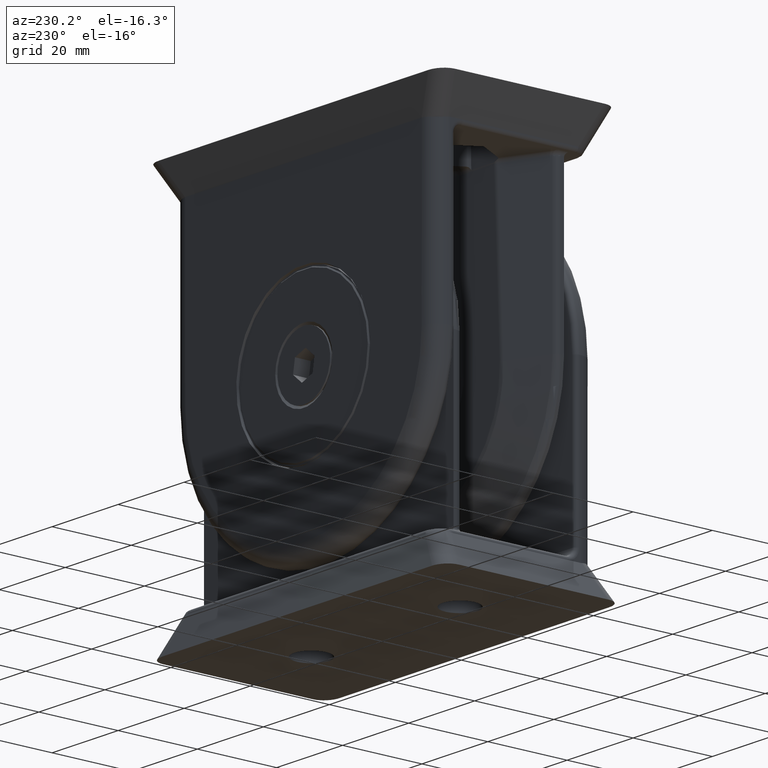
[diagram: clean part render]
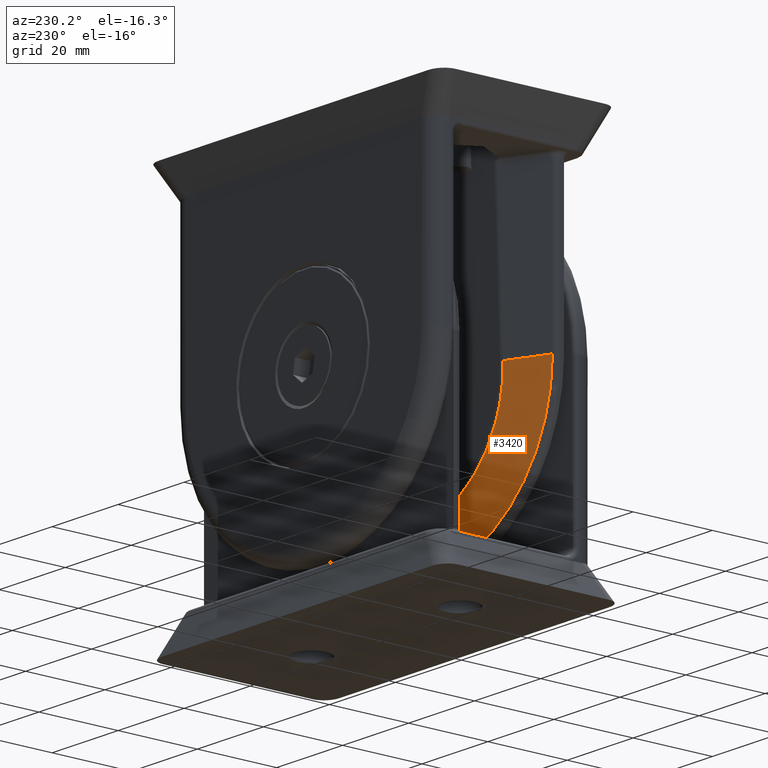
[diagram: same view with one face highlighted and labeled with its STEP entity id]
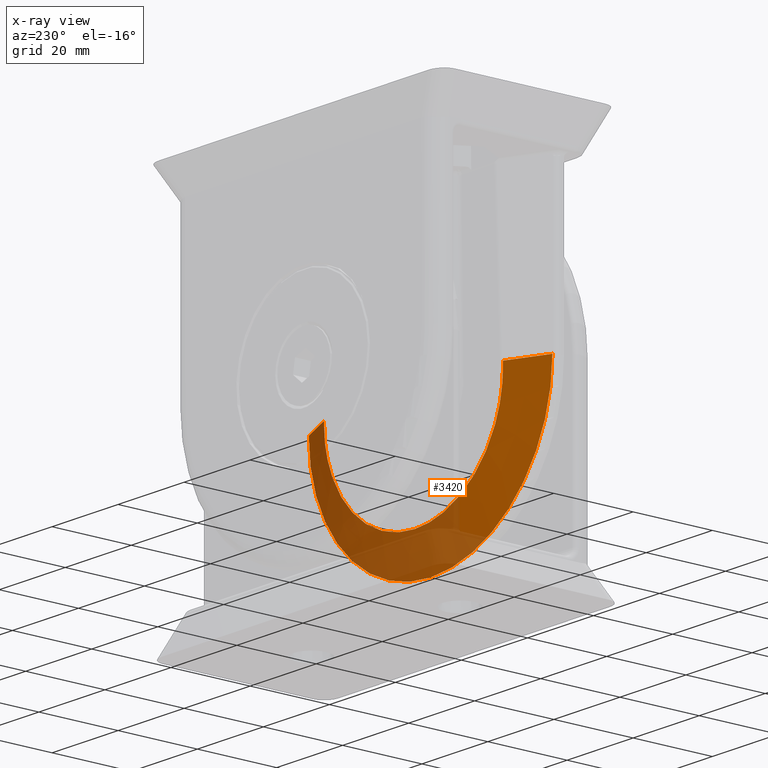
[diagram: x-ray of the same camera — body ghosted, the highlighted face saturated]
A machine part, auxiliary view. The second image highlights one B-rep face of the part: STEP entity #3420.
The next image is the same camera in x-ray: the body ghosted, the highlighted face saturated — about 50% of this face is hidden behind the body in this view.
In plain terms, the highlighted conical surface has half-angle 66.125 deg.
Its self-contained STEP definition (entity closure, byte-faithful):
#293=LINE('',#7201,#520);
#294=LINE('',#7204,#521);
#520=VECTOR('',#4271,1000.);
#521=VECTOR('',#4274,1000.);
#745=CONICAL_SURFACE('',#3763,36.9071206680867,1.1540940660555);
#770=B_SPLINE_CURVE_WITH_KNOTS('',3,(#6837,#6838,#6839,#6840,#6841,#6842,
#6843,#6844,#6845,#6846,#6847,#6848,#6849,#6850,#6851,#6852,#6853,#6854,
#6855,#6856,#6857,#6858,#6859,#6860,#6861,#6862,#6863,#6864,#6865,#6866,
#6867,#6868,#6869,#6870,#6871,#6872,#6873,#6874,#6875,#6876,#6877,#6878,
#6879,#6880,#6881,#6882,#6883,#6884,#6885,#6886,#6887,#6888,#6889,#6890,
#6891,#6892,#6893,#6894,#6895,#6896,#6897,#6898,#6899,#6900,#6901,#6902,
#6903,#6904,#6905,#6906,#6907,#6908,#6909,#6910,#6911,#6912,#6913,#6914,
#6915,#6916,#6917,#6918,#6919,#6920,#6921,#6922,#6923,#6924,#6925,#6926,
#6927,#6928,#6929,#6930,#6931,#6932,#6933,#6934,#6935,#6936,#6937,#6938,
#6939,#6940,#6941,#6942,#6943,#6944,#6945,#6946,#6947,#6948,#6949,#6950,
#6951,#6952,#6953,#6954,#6955,#6956,#6957,#6958,#6959,#6960,#6961,#6962,
#6963,#6964,#6965,#6966,#6967,#6968,#6969,#6970,#6971,#6972,#6973,#6974,
#6975,#6976,#6977,#6978,#6979,#6980,#6981,#6982,#6983,#6984,#6985,#6986,
#6987,#6988,#6989,#6990,#6991,#6992,#6993,#6994,#6995,#6996,#6997,#6998,
#6999,#7000,#7001,#7002,#7003,#7004,#7005,#7006,#7007,#7008,#7009,#7010,
#7011,#7012,#7013,#7014,#7015,#7016,#7017,#7018,#7019,#7020,#7021,#7022,
#7023,#7024,#7025,#7026),.UNSPECIFIED.,.F.,.F.,(4,3,3,3,3,3,3,3,3,3,3,3,
3,3,3,3,3,3,3,3,3,3,3,3,3,3,3,3,3,3,3,3,3,3,3,3,3,3,3,3,3,3,3,3,3,3,3,3,
3,3,3,3,3,3,3,3,3,3,3,3,3,3,3,4),(0.,0.00496901408670476,0.00999348648159297,
0.0150870706226148,0.0156174301950098,0.0207750741985924,0.026004967294306,
0.0312348603900196,0.0364837641100364,0.0417456848402849,0.0468522905850294,
0.0522104310848483,0.0575685715846672,0.0624697207800392,0.0625307263667378,
0.0627137431268333,0.0629577654736271,0.0634458101672145,0.0644218995543892,
0.0663740783287386,0.0702784358774375,0.0780871509748354,0.0884973774048835,
0.0937045811696312,0.104400970945009,0.115345129519623,0.124646324275903,
0.124939441559223,0.125183463906017,0.137807438707664,0.140556871754016,
0.153738007328975,0.156174301948808,0.169225074839509,0.182431340771903,
0.183785299570396,0.187409162338392,0.200928688466236,0.214677067463979,
0.228564027215827,0.24267170086544,0.249636210686608,0.24987888311756,0.250366927811148,
0.266335901384866,0.281113743507141,0.29730732480536,0.310700852525828,
0.312348603896722,0.32916138072297,0.346038459850761,0.36302135108131,0.374667701468656,
0.374818324675884,0.375745542263617,0.375794414063059,0.396519471010802,
0.406053185065466,0.427346229646554,0.436778259972699,0.437288045455047,
0.459915033516844,0.482334324087893,0.49975776623421),.UNSPECIFIED.);
#771=B_SPLINE_CURVE_WITH_KNOTS('',3,(#7028,#7029,#7030,#7031,#7032,#7033,
#7034,#7035,#7036,#7037,#7038,#7039,#7040,#7041,#7042,#7043,#7044,#7045,
#7046,#7047,#7048,#7049,#7050,#7051,#7052,#7053,#7054,#7055,#7056,#7057,
#7058,#7059,#7060,#7061,#7062,#7063,#7064,#7065,#7066,#7067,#7068,#7069,
#7070,#7071,#7072,#7073,#7074,#7075,#7076,#7077,#7078,#7079,#7080,#7081,
#7082,#7083,#7084,#7085,#7086,#7087,#7088,#7089,#7090,#7091,#7092,#7093,
#7094,#7095,#7096,#7097,#7098,#7099,#7100,#7101,#7102,#7103,#7104,#7105,
#7106,#7107,#7108,#7109,#7110,#7111,#7112,#7113,#7114,#7115,#7116,#7117,
#7118,#7119,#7120,#7121,#7122,#7123,#7124,#7125,#7126,#7127,#7128,#7129,
#7130,#7131,#7132,#7133,#7134,#7135,#7136,#7137,#7138,#7139,#7140,#7141,
#7142,#7143,#7144,#7145,#7146,#7147,#7148,#7149,#7150,#7151,#7152,#7153,
#7154,#7155,#7156,#7157,#7158,#7159,#7160,#7161,#7162,#7163,#7164,#7165,
#7166,#7167,#7168,#7169,#7170,#7171,#7172,#7173,#7174,#7175,#7176,#7177,
#7178,#7179,#7180,#7181,#7182,#7183,#7184,#7185,#7186,#7187,#7188,#7189,
#7190,#7191,#7192,#7193,#7194,#7195,#7196,#7197,#7198,#7199),
 .UNSPECIFIED.,.F.,.F.,(4,3,3,3,3,3,3,3,3,3,3,3,3,3,3,3,3,3,3,3,3,3,3,3,
3,3,3,3,3,3,3,3,3,3,3,3,3,3,3,3,3,3,3,3,3,3,3,3,3,3,3,3,3,3,3,3,3,4),(0.49975776623421,
0.522501690391458,0.545265502026357,0.562288045454961,0.562751039808893,
0.585116945097173,0.607697129267104,0.624818324675712,0.624875138626123,
0.626262761929181,0.626772395901361,0.644136714095704,0.656083464286088,
0.673203597096208,0.687348603896463,0.688898806063737,0.705485707522742,
0.722017965688576,0.738470897152814,0.749878883117214,0.749982601406335,
0.750784015006457,0.750855918730038,0.765511452922399,0.779398061005293,
0.781144022727585,0.795013442474264,0.808692183368573,0.812409162337957,
0.815903920837752,0.829276912624057,0.842446984661242,0.855507936882645,
0.868414468005646,0.8749394415587,0.875041224599058,0.875183700461906,0.875427959365112,
0.875916477171523,0.876893512784346,0.878847584009991,0.882755726461282,
0.890572011363863,0.899569107448061,0.906204581169025,0.915060768021706,
0.923833133336935,0.932460434289638,0.93746972077935,0.945879054547924,
0.95112218702445,0.959928523707063,0.968179313211954,0.968734860389675,
0.976770314219481,0.984694483860367,0.992442504353739,1.),.UNSPECIFIED.);
#827=FACE_OUTER_BOUND('',#1046,.T.);
#1046=EDGE_LOOP('',(#2386,#2387,#2388,#2389,#2390));
#1307=CIRCLE('',#3764,36.9071206680866);
#1516=VERTEX_POINT('',#6835);
#1517=VERTEX_POINT('',#6836);
#1518=VERTEX_POINT('',#7027);
#1519=VERTEX_POINT('',#7200);
#1520=VERTEX_POINT('',#7202);
#1851=EDGE_CURVE('',#1516,#1517,#770,.T.);
#1852=EDGE_CURVE('',#1517,#1518,#771,.T.);
#1853=EDGE_CURVE('',#1518,#1519,#293,.T.);
#1854=EDGE_CURVE('',#1519,#1520,#1307,.T.);
#1855=EDGE_CURVE('',#1520,#1516,#294,.T.);
#2386=ORIENTED_EDGE('',*,*,#1851,.T.);
#2387=ORIENTED_EDGE('',*,*,#1852,.T.);
#2388=ORIENTED_EDGE('',*,*,#1853,.T.);
#2389=ORIENTED_EDGE('',*,*,#1854,.T.);
#2390=ORIENTED_EDGE('',*,*,#1855,.T.);
#3420=ADVANCED_FACE('',(#827),#745,.T.);
#3763=AXIS2_PLACEMENT_3D('',#6834,#4269,#4270);
#3764=AXIS2_PLACEMENT_3D('',#7203,#4272,#4273);
#4269=DIRECTION('center_axis',(0.,-1.,0.));
#4270=DIRECTION('ref_axis',(0.,0.,-1.));
#4271=DIRECTION('',(0.914428660574951,-0.404747112057765,0.));
#4272=DIRECTION('center_axis',(0.,1.,0.));
#4273=DIRECTION('ref_axis',(0.,0.,-1.));
#4274=DIRECTION('',(0.914428660574951,0.404747112057765,0.));
#6834=CARTESIAN_POINT('Origin',(5.02088605067175E-15,-12.2047911153826,
-41.));
#6835=CARTESIAN_POINT('',(-27.1305756899519,-7.87746792833935,-41.));
#6836=CARTESIAN_POINT('',(-2.08992956274301E-8,-8.21174318684244,-68.8857901628663));
#6837=CARTESIAN_POINT('Ctrl Pts',(-27.1305756899519,-7.87746792833935,-41.));
#6838=CARTESIAN_POINT('Ctrl Pts',(-27.1372672709789,-7.88042977567918,-41.2472879584135));
#6839=CARTESIAN_POINT('Ctrl Pts',(-27.1403612086924,-7.88329906252694,-41.486842247325));
#6840=CARTESIAN_POINT('Ctrl Pts',(-27.1404860785424,-7.88607440846574,-41.7185548934099));
#6841=CARTESIAN_POINT('Ctrl Pts',(-27.1406123420432,-7.88888072956133,-41.9528536443262));
#6842=CARTESIAN_POINT('Ctrl Pts',(-27.1377029658793,-7.89159100464065,-42.179135029916));
#6843=CARTESIAN_POINT('Ctrl Pts',(-27.1323648187936,-7.89420418908545,-42.3973192376093));
#6844=CARTESIAN_POINT('Ctrl Pts',(-27.1269532453584,-7.89685331794903,-42.6185045746525));
#6845=CARTESIAN_POINT('Ctrl Pts',(-27.1190457230542,-7.89940267029386,-42.8313687360082));
#6846=CARTESIAN_POINT('Ctrl Pts',(-27.1092292546488,-7.90185149590535,-43.0358566801703));
#6847=CARTESIAN_POINT('Ctrl Pts',(-27.1082071339099,-7.90210647512395,-43.0571485908609));
#6848=CARTESIAN_POINT('Ctrl Pts',(-27.1071642764378,-7.90236036474134,-43.0783497123472));
#6849=CARTESIAN_POINT('Ctrl Pts',(-27.1061013165139,-7.9026131640941,-43.0994599977441));
#6850=CARTESIAN_POINT('Ctrl Pts',(-27.0957642373644,-7.9050715887813,-43.3047534298952));
#6851=CARTESIAN_POINT('Ctrl Pts',(-27.0835277275076,-7.90742588814931,-43.5014548128113));
#6852=CARTESIAN_POINT('Ctrl Pts',(-27.0699499191804,-7.90967635984589,-43.689537863592));
#6853=CARTESIAN_POINT('Ctrl Pts',(-27.0561819107689,-7.91195835650558,-43.8802556114659));
#6854=CARTESIAN_POINT('Ctrl Pts',(-27.0410348717579,-7.91413359981367,-44.0621121824995));
#6855=CARTESIAN_POINT('Ctrl Pts',(-27.0250401930092,-7.91620263344053,-44.2350998530527));
#6856=CARTESIAN_POINT('Ctrl Pts',(-27.0090455142604,-7.9182716670674,-44.4080875236059));
#6857=CARTESIAN_POINT('Ctrl Pts',(-26.9922031906735,-7.920234494835,-44.5722066166081));
#6858=CARTESIAN_POINT('Ctrl Pts',(-26.9749938266691,-7.92209183556343,-44.7274641764936));
#6859=CARTESIAN_POINT('Ctrl Pts',(-26.9577219067485,-7.92395592771224,-44.8832860965078));
#6860=CARTESIAN_POINT('Ctrl Pts',(-26.9400805807614,-7.92571387998015,-45.0301822177982));
#6861=CARTESIAN_POINT('Ctrl Pts',(-26.9225021919453,-7.92736589883561,-45.1681739145141));
#6862=CARTESIAN_POINT('Ctrl Pts',(-26.9048802096325,-7.92902201461255,-45.3065078235136));
#6863=CARTESIAN_POINT('Ctrl Pts',(-26.8873214923619,-7.93057167406844,-45.4358933517386));
#6864=CARTESIAN_POINT('Ctrl Pts',(-26.8702095243766,-7.93201515892444,-45.5563580426902));
#6865=CARTESIAN_POINT('Ctrl Pts',(-26.8536026466798,-7.93341603674757,-45.6732670031989));
#6866=CARTESIAN_POINT('Ctrl Pts',(-26.8374162932636,-7.9347169180006,-45.7817742048331));
#6867=CARTESIAN_POINT('Ctrl Pts',(-26.8219540872653,-7.93591808638446,-45.881906886196));
#6868=CARTESIAN_POINT('Ctrl Pts',(-26.8057302633954,-7.93717842040795,-45.9869717770814));
#6869=CARTESIAN_POINT('Ctrl Pts',(-26.7903038827515,-7.93832886822652,-46.0828169666579));
#6870=CARTESIAN_POINT('Ctrl Pts',(-26.7759691547959,-7.93936932362533,-46.169477408564));
#6871=CARTESIAN_POINT('Ctrl Pts',(-26.7616344268403,-7.94040977902413,-46.2561378504702));
#6872=CARTESIAN_POINT('Ctrl Pts',(-26.7483913469984,-7.94134024421832,-46.333613726216));
#6873=CARTESIAN_POINT('Ctrl Pts',(-26.7364780510123,-7.94216056646738,-46.4019359205641));
#6874=CARTESIAN_POINT('Ctrl Pts',(-26.7255808300382,-7.94291092412058,-46.4644309723207));
#6875=CARTESIAN_POINT('Ctrl Pts',(-26.715795643787,-7.94356912440522,-46.5192670716622));
#6876=CARTESIAN_POINT('Ctrl Pts',(-26.7072638016368,-7.94413499631989,-46.5664632390231));
#6877=CARTESIAN_POINT('Ctrl Pts',(-26.707157604087,-7.94414203984107,-46.567050699181));
#6878=CARTESIAN_POINT('Ctrl Pts',(-26.706569557678,-7.94418102784581,-46.5703024526842));
#6879=CARTESIAN_POINT('Ctrl Pts',(-26.7062221852284,-7.94420403922969,-46.572221672091));
#6880=CARTESIAN_POINT('Ctrl Pts',(-26.7051800678796,-7.94427307338132,-46.5779793303112));
#6881=CARTESIAN_POINT('Ctrl Pts',(-26.7041364503443,-7.94434208110917,-46.5837346518972));
#6882=CARTESIAN_POINT('Ctrl Pts',(-26.703091336772,-7.9444110623678,-46.5894876362441));
#6883=CARTESIAN_POINT('Ctrl Pts',(-26.701697852009,-7.94450303737931,-46.59715828204));
#6884=CARTESIAN_POINT('Ctrl Pts',(-26.7003017076249,-7.94459496533431,-46.6048247727443));
#6885=CARTESIAN_POINT('Ctrl Pts',(-26.6989029134463,-7.94468684612616,-46.6124871069393));
#6886=CARTESIAN_POINT('Ctrl Pts',(-26.696105325089,-7.94487060770985,-46.6278117753293));
#6887=CARTESIAN_POINT('Ctrl Pts',(-26.6932971375555,-7.94505418063756,-46.6431198176824));
#6888=CARTESIAN_POINT('Ctrl Pts',(-26.6904784293483,-7.94523756407273,-46.6584112228388));
#6889=CARTESIAN_POINT('Ctrl Pts',(-26.6848410129338,-7.94560433094309,-46.6889940331515));
#6890=CARTESIAN_POINT('Ctrl Pts',(-26.6791615138483,-7.94597033978949,-46.7195102946801));
#6891=CARTESIAN_POINT('Ctrl Pts',(-26.6734405582666,-7.94633558416646,-46.7499599211253));
#6892=CARTESIAN_POINT('Ctrl Pts',(-26.6619986471031,-7.9470660729204,-46.8108591740156));
#6893=CARTESIAN_POINT('Ctrl Pts',(-26.6503909103329,-7.94779350293853,-46.8714918866168));
#6894=CARTESIAN_POINT('Ctrl Pts',(-26.6386223274541,-7.94851782637461,-46.9318574149129));
#6895=CARTESIAN_POINT('Ctrl Pts',(-26.6150851616964,-7.94996647324677,-47.0525884715051));
#6896=CARTESIAN_POINT('Ctrl Pts',(-26.5909046160201,-7.95140268067817,-47.1722507969157));
#6897=CARTESIAN_POINT('Ctrl Pts',(-26.5661191096939,-7.95282566194946,-47.2908394035182));
#6898=CARTESIAN_POINT('Ctrl Pts',(-26.5165480970415,-7.95567162449206,-47.5280166167234));
#6899=CARTESIAN_POINT('Ctrl Pts',(-26.4645519910176,-7.95846204339978,-47.7608977561409));
#6900=CARTESIAN_POINT('Ctrl Pts',(-26.4104505380895,-7.96120077182293,-47.989460172224));
#6901=CARTESIAN_POINT('Ctrl Pts',(-26.3383249235485,-7.96485192091209,-48.2941692665047));
#6902=CARTESIAN_POINT('Ctrl Pts',(-26.2624588343281,-7.96841118242944,-48.5912014867922));
#6903=CARTESIAN_POINT('Ctrl Pts',(-26.1835540486255,-7.97187828914183,-48.8805358020313));
#6904=CARTESIAN_POINT('Ctrl Pts',(-26.1440858103573,-7.97361253875176,-49.0252610628801));
#6905=CARTESIAN_POINT('Ctrl Pts',(-26.1038566936363,-7.97532373822041,-49.1680608896557));
#6906=CARTESIAN_POINT('Ctrl Pts',(-26.0629510016781,-7.97701189426168,-49.3089359920547));
#6907=CARTESIAN_POINT('Ctrl Pts',(-25.9789244790024,-7.98047962393671,-49.5983149126775));
#6908=CARTESIAN_POINT('Ctrl Pts',(-25.8920455308425,-7.9838500045298,-49.8795701314555));
#6909=CARTESIAN_POINT('Ctrl Pts',(-25.8030141563838,-7.98712352038637,-50.1527356236569));
#6910=CARTESIAN_POINT('Ctrl Pts',(-25.7119204789231,-7.99047286323785,-50.4322286607045));
#6911=CARTESIAN_POINT('Ctrl Pts',(-25.6185735904788,-7.99372080456374,-50.7032530781792));
#6912=CARTESIAN_POINT('Ctrl Pts',(-25.5236796969023,-7.99686827150501,-50.9658792902786));
#6913=CARTESIAN_POINT('Ctrl Pts',(-25.4430315064252,-7.9995432330208,-51.1890794139049));
#6914=CARTESIAN_POINT('Ctrl Pts',(-25.3612651650456,-8.00214563099665,-51.4062142730951));
#6915=CARTESIAN_POINT('Ctrl Pts',(-25.2787897933373,-8.00467623437207,-51.6173437339757));
#6916=CARTESIAN_POINT('Ctrl Pts',(-25.2761906695119,-8.00475598365224,-51.6239972549075));
#6917=CARTESIAN_POINT('Ctrl Pts',(-25.2735908402595,-8.00483566162813,-51.6306448114659));
#6918=CARTESIAN_POINT('Ctrl Pts',(-25.270990318436,-8.00491526832841,-51.6372864059115));
#6919=CARTESIAN_POINT('Ctrl Pts',(-25.2688253644248,-8.00498154150618,-51.6428155833272));
#6920=CARTESIAN_POINT('Ctrl Pts',(-25.2652817398507,-8.00508989647233,-51.6518564460548));
#6921=CARTESIAN_POINT('Ctrl Pts',(-25.2624235167052,-8.00517716072056,-51.6591375472317));
#6922=CARTESIAN_POINT('Ctrl Pts',(-25.1145594483535,-8.00969159017846,-52.0358097618605));
#6923=CARTESIAN_POINT('Ctrl Pts',(-24.9596956307415,-8.01412233629411,-52.4054869010837));
#6924=CARTESIAN_POINT('Ctrl Pts',(-24.798503459407,-8.01846740071661,-52.7680037905788));
#6925=CARTESIAN_POINT('Ctrl Pts',(-24.7633966812612,-8.01941373211377,-52.8469579972767));
#6926=CARTESIAN_POINT('Ctrl Pts',(-24.7279896075892,-8.02035600128674,-52.9255727312511));
#6927=CARTESIAN_POINT('Ctrl Pts',(-24.6922889950295,-8.02129419069338,-53.0038465442938));
#6928=CARTESIAN_POINT('Ctrl Pts',(-24.5211356676618,-8.025791991351,-53.3791012692833));
#6929=CARTESIAN_POINT('Ctrl Pts',(-24.343238305184,-8.03019598019439,-53.7465169509323));
#6930=CARTESIAN_POINT('Ctrl Pts',(-24.1593136076155,-8.03450108790493,-54.1059594516514));
#6931=CARTESIAN_POINT('Ctrl Pts',(-24.1253184522973,-8.03529680923662,-54.1723958998361));
#6932=CARTESIAN_POINT('Ctrl Pts',(-24.0911172995412,-8.03608915396639,-54.2385600758311));
#6933=CARTESIAN_POINT('Ctrl Pts',(-24.0567145577771,-8.03687809205102,-54.3044512868088));
#6934=CARTESIAN_POINT('Ctrl Pts',(-23.8724255288864,-8.0411042852559,-54.6574181336598));
#6935=CARTESIAN_POINT('Ctrl Pts',(-23.6823467151936,-8.04522900309247,-55.0025453442179));
#6936=CARTESIAN_POINT('Ctrl Pts',(-23.487161206546,-8.04925944179597,-55.3397615303633));
#6937=CARTESIAN_POINT('Ctrl Pts',(-23.2896501660169,-8.05333790104037,-55.6809954686319));
#6938=CARTESIAN_POINT('Ctrl Pts',(-23.0869100343839,-8.05731982175543,-56.0141288341164));
#6939=CARTESIAN_POINT('Ctrl Pts',(-22.8796162580173,-8.06121309492248,-56.339129856602));
#6940=CARTESIAN_POINT('Ctrl Pts',(-22.8583636773241,-8.0616122487398,-56.3724502513423));
#6941=CARTESIAN_POINT('Ctrl Pts',(-22.8370632046953,-8.06201047113719,-56.4056852011613));
#6942=CARTESIAN_POINT('Ctrl Pts',(-22.8157155490102,-8.06240777087016,-56.4388346959274));
#6943=CARTESIAN_POINT('Ctrl Pts',(-22.758578674013,-8.06347114127083,-56.527559123875));
#6944=CARTESIAN_POINT('Ctrl Pts',(-22.7011039923176,-8.0645278986175,-56.6156710994611));
#6945=CARTESIAN_POINT('Ctrl Pts',(-22.6433061420901,-8.065578221584,-56.7031713508576));
#6946=CARTESIAN_POINT('Ctrl Pts',(-22.4276800005087,-8.06949665605499,-57.0296080872031));
#6947=CARTESIAN_POINT('Ctrl Pts',(-22.2075374514685,-8.07331356153321,-57.3475121234343));
#6948=CARTESIAN_POINT('Ctrl Pts',(-21.9835946958581,-8.07702898940449,-57.656930986678));
#6949=CARTESIAN_POINT('Ctrl Pts',(-21.7558611311743,-8.080807310481,-57.9715875627071));
#6950=CARTESIAN_POINT('Ctrl Pts',(-21.5241976228461,-8.0844806900871,-58.2774693280131));
#6951=CARTESIAN_POINT('Ctrl Pts',(-21.2893151133885,-8.0880495933723,-58.5746600746737));
#6952=CARTESIAN_POINT('Ctrl Pts',(-21.052065037886,-8.09165447044821,-58.8748464412392));
#6953=CARTESIAN_POINT('Ctrl Pts',(-20.8115306971492,-8.09515275571525,-59.1661658065324));
#6954=CARTESIAN_POINT('Ctrl Pts',(-20.5684023412167,-8.09854532794357,-59.4487373926455));
#6955=CARTESIAN_POINT('Ctrl Pts',(-20.3214097984461,-8.10199182038577,-59.7358000608445));
#6956=CARTESIAN_POINT('Ctrl Pts',(-20.0717401210491,-8.10532921384683,-60.0138347606563));
#6957=CARTESIAN_POINT('Ctrl Pts',(-19.8200737777587,-8.10855882199908,-60.282998797422));
#6958=CARTESIAN_POINT('Ctrl Pts',(-19.6958341077015,-8.11015317683415,-60.4158765222771));
#6959=CARTESIAN_POINT('Ctrl Pts',(-19.5711071760096,-8.11172126936905,-60.5465928767724));
#6960=CARTESIAN_POINT('Ctrl Pts',(-19.4459710758266,-8.113263290743,-60.6751695126004));
#6961=CARTESIAN_POINT('Ctrl Pts',(-19.4416108146724,-8.11331702116841,-60.6796496562977));
#6962=CARTESIAN_POINT('Ctrl Pts',(-19.4372500572931,-8.11337071993269,-60.6841272014967));
#6963=CARTESIAN_POINT('Ctrl Pts',(-19.4328888071491,-8.11342438704689,-60.6886021493599));
#6964=CARTESIAN_POINT('Ctrl Pts',(-19.4241177861401,-8.11353231834426,-60.6976018307415));
#6965=CARTESIAN_POINT('Ctrl Pts',(-19.4122674875387,-8.11367791615297,-60.709743688323));
#6966=CARTESIAN_POINT('Ctrl Pts',(-19.4019464992292,-8.11380449006481,-60.7202990725894));
#6967=CARTESIAN_POINT('Ctrl Pts',(-19.0642405642288,-8.11794602767353,-61.065674515914));
#6968=CARTESIAN_POINT('Ctrl Pts',(-18.7191827942839,-8.12195603417055,-61.4000708391618));
#6969=CARTESIAN_POINT('Ctrl Pts',(-18.3676110200593,-8.12583276216883,-61.7233442654171));
#6970=CARTESIAN_POINT('Ctrl Pts',(-18.0422631102418,-8.12942032363889,-62.0225046111635));
#6971=CARTESIAN_POINT('Ctrl Pts',(-17.7113350889774,-8.13289376723734,-62.3121411277433));
#6972=CARTESIAN_POINT('Ctrl Pts',(-17.3754597220252,-8.13625202632649,-62.5921663213781));
#6973=CARTESIAN_POINT('Ctrl Pts',(-17.0074069971546,-8.13993201161329,-62.8990183435579));
#6974=CARTESIAN_POINT('Ctrl Pts',(-16.6333980442562,-8.14346310329158,-63.1943110614452));
#6975=CARTESIAN_POINT('Ctrl Pts',(-16.254249452674,-8.146855996539,-63.4779765608943));
#6976=CARTESIAN_POINT('Ctrl Pts',(-15.9406599459421,-8.14966222012382,-63.7125930833452));
#6977=CARTESIAN_POINT('Ctrl Pts',(-15.6235537992875,-8.15237391102065,-63.9392563426004));
#6978=CARTESIAN_POINT('Ctrl Pts',(-15.3033720749548,-8.15499728066038,-64.1579448215432));
#6979=CARTESIAN_POINT('Ctrl Pts',(-15.2639814165551,-8.15532002318278,-64.1848491777739));
#6980=CARTESIAN_POINT('Ctrl Pts',(-15.2245442395225,-8.15564142866027,-64.2116328143284));
#6981=CARTESIAN_POINT('Ctrl Pts',(-15.1850614188399,-8.15596151011964,-64.2382958154656));
#6982=CARTESIAN_POINT('Ctrl Pts',(-14.7821997588017,-8.15922745074498,-64.5103508691323));
#6983=CARTESIAN_POINT('Ctrl Pts',(-14.374575163187,-8.1623432651117,-64.7698211220262));
#6984=CARTESIAN_POINT('Ctrl Pts',(-13.96307468394,-8.16530925433842,-65.0167830974092));
#6985=CARTESIAN_POINT('Ctrl Pts',(-13.5500003761591,-8.16828658731494,-65.2646896058443));
#6986=CARTESIAN_POINT('Ctrl Pts',(-13.1330204516876,-8.17111294728524,-65.4999920008542));
#6987=CARTESIAN_POINT('Ctrl Pts',(-12.7129850472807,-8.17378892801776,-65.7227913758214));
#6988=CARTESIAN_POINT('Ctrl Pts',(-12.2903161996673,-8.17648168601049,-65.9469876080398));
#6989=CARTESIAN_POINT('Ctrl Pts',(-11.8645534263964,-8.17902217350415,-66.1585235697677));
#6990=CARTESIAN_POINT('Ctrl Pts',(-11.4365156047289,-8.18141128304885,-66.357525892112));
#6991=CARTESIAN_POINT('Ctrl Pts',(-11.1429802824742,-8.18304966172616,-66.4939956334802));
#6992=CARTESIAN_POINT('Ctrl Pts',(-10.8483740644011,-8.18461685638063,-66.6245715478632));
#6993=CARTESIAN_POINT('Ctrl Pts',(-10.552948361269,-8.18611323111887,-66.7493007554777));
#6994=CARTESIAN_POINT('Ctrl Pts',(-10.5491275963578,-8.18613258385641,-66.7509138885761));
#6995=CARTESIAN_POINT('Ctrl Pts',(-10.5453066946947,-8.18615192474677,-66.752526043605));
#6996=CARTESIAN_POINT('Ctrl Pts',(-10.5414856568457,-8.18617125379178,-66.7541372207516));
#6997=CARTESIAN_POINT('Ctrl Pts',(-10.5179638266964,-8.18629024097054,-66.764055425355));
#6998=CARTESIAN_POINT('Ctrl Pts',(-10.4915875956593,-8.18642312741018,-66.7751333315854));
#6999=CARTESIAN_POINT('Ctrl Pts',(-10.4664048045236,-8.18654943319388,-66.7856626883746));
#7000=CARTESIAN_POINT('Ctrl Pts',(-10.4650774695657,-8.18655609052115,-66.7862176698806));
#7001=CARTESIAN_POINT('Ctrl Pts',(-10.4637534548648,-8.18656272970152,-66.786771138704));
#7002=CARTESIAN_POINT('Ctrl Pts',(-10.4624333547212,-8.18656934778131,-66.7873228484722));
#7003=CARTESIAN_POINT('Ctrl Pts',(-9.90261867699573,-8.1893758759206,-67.0212863303859));
#7004=CARTESIAN_POINT('Ctrl Pts',(-9.33613316047358,-8.19195053773253,-67.2359160581036));
#7005=CARTESIAN_POINT('Ctrl Pts',(-8.76440320465793,-8.19429128220323,-67.4310428799778));
#7006=CARTESIAN_POINT('Ctrl Pts',(-8.50140224263522,-8.19536804587703,-67.5208029867333));
#7007=CARTESIAN_POINT('Ctrl Pts',(-8.23729066493843,-8.19639531595782,-67.6064365544399));
#7008=CARTESIAN_POINT('Ctrl Pts',(-7.97220427582786,-8.1973729125036,-67.687928757247));
#7009=CARTESIAN_POINT('Ctrl Pts',(-7.38014788848427,-8.19955632252748,-67.8699372690855));
#7010=CARTESIAN_POINT('Ctrl Pts',(-6.7832213380485,-8.20147989972164,-68.0312605811385));
#7011=CARTESIAN_POINT('Ctrl Pts',(-6.18292899587094,-8.20315884803894,-68.1717834246055));
#7012=CARTESIAN_POINT('Ctrl Pts',(-5.91702171547196,-8.20390255997663,-68.2340298410844));
#7013=CARTESIAN_POINT('Ctrl Pts',(-5.65045341169591,-8.20459827462532,-68.2921951924945));
#7014=CARTESIAN_POINT('Ctrl Pts',(-5.38335193324082,-8.20524732782737,-68.3462709709852));
#7015=CARTESIAN_POINT('Ctrl Pts',(-5.36891554453957,-8.20528240806866,-68.3491936764758));
#7016=CARTESIAN_POINT('Ctrl Pts',(-5.35447760405614,-8.20531735198864,-68.3521044343977));
#7017=CARTESIAN_POINT('Ctrl Pts',(-5.34003813258792,-8.20535215984481,-68.3550032472832));
#7018=CARTESIAN_POINT('Ctrl Pts',(-4.699137675743,-8.20689711742647,-68.4836679637653));
#7019=CARTESIAN_POINT('Ctrl Pts',(-4.05521923441335,-8.20816146028679,-68.5887712231913));
#7020=CARTESIAN_POINT('Ctrl Pts',(-3.41006760121495,-8.20914568455337,-68.6704933942366));
#7021=CARTESIAN_POINT('Ctrl Pts',(-2.77083793938103,-8.21012087443544,-68.7514654217003));
#7022=CARTESIAN_POINT('Ctrl Pts',(-2.13039765498923,-8.21082106511733,-68.8094836417975));
#7023=CARTESIAN_POINT('Ctrl Pts',(-1.49043437941689,-8.21124693255738,-68.8447392845791));
#7024=CARTESIAN_POINT('Ctrl Pts',(-0.993078628022121,-8.21157790095623,
-68.8721386641621));
#7025=CARTESIAN_POINT('Ctrl Pts',(-0.496010034674406,-8.21174318683791,
-68.8857901624831));
#7026=CARTESIAN_POINT('Ctrl Pts',(-2.08992956274301E-8,-8.21174318684244,
-68.8857901628663));
#7027=CARTESIAN_POINT('',(27.1305756899519,-7.87746792833935,-41.));
#7028=CARTESIAN_POINT('Ctrl Pts',(-2.08992956274301E-8,-8.21174318684244,
-68.8857901628663));
#7029=CARTESIAN_POINT('Ctrl Pts',(0.647473295495542,-8.21174272763124,-68.8857891258759));
#7030=CARTESIAN_POINT('Ctrl Pts',(1.29667163208552,-8.21146077409792,-68.8625267914415));
#7031=CARTESIAN_POINT('Ctrl Pts',(1.94590486238934,-8.21089660035598,-68.8158035586142));
#7032=CARTESIAN_POINT('Ctrl Pts',(2.59570578766389,-8.21033193329579,-68.7690394706012));
#7033=CARTESIAN_POINT('Ctrl Pts',(3.24554166626511,-8.2094845520547,-68.6987734462282));
#7034=CARTESIAN_POINT('Ctrl Pts',(3.89366629472695,-8.20835382427217,-68.6048132541585));
#7035=CARTESIAN_POINT('Ctrl Pts',(4.37832720354526,-8.20750827770498,-68.5345507921543));
#7036=CARTESIAN_POINT('Ctrl Pts',(4.86203013749676,-8.2065042886908,-68.4510389657764));
#7037=CARTESIAN_POINT('Ctrl Pts',(5.34402607696349,-8.20534162873453,-68.3542002267055));
#7038=CARTESIAN_POINT('Ctrl Pts',(5.35713583341834,-8.20531000566965,-68.3515663201086));
#7039=CARTESIAN_POINT('Ctrl Pts',(5.37024431932095,-8.20527826606855,-68.3489225579406));
#7040=CARTESIAN_POINT('Ctrl Pts',(5.38335151915873,-8.20524640988924,-68.3462689386657));
#7041=CARTESIAN_POINT('Ctrl Pts',(6.01652207011031,-8.20370753088746,-68.2180803400999));
#7042=CARTESIAN_POINT('Ctrl Pts',(6.64668342058423,-8.20189661167071,-68.0668896792037));
#7043=CARTESIAN_POINT('Ctrl Pts',(7.27212777498207,-8.19981294063147,-67.8928577015143));
#7044=CARTESIAN_POINT('Ctrl Pts',(7.90356426406293,-8.19770930676515,-67.7171583923634));
#7045=CARTESIAN_POINT('Ctrl Pts',(8.53019288869488,-8.19532766991935,-67.5181779649358));
#7046=CARTESIAN_POINT('Ctrl Pts',(9.15021007654113,-8.19266760899976,-67.2961085473411));
#7047=CARTESIAN_POINT('Ctrl Pts',(9.6203318146954,-8.19065064481291,-67.1277266659401));
#7048=CARTESIAN_POINT('Ctrl Pts',(10.0866514936733,-8.18847361334302,-66.946070832974));
#7049=CARTESIAN_POINT('Ctrl Pts',(10.5483657717943,-8.18613644763009,-66.7512350624282));
#7050=CARTESIAN_POINT('Ctrl Pts',(10.5498978968285,-8.18612869211923,-66.7505885310651));
#7051=CARTESIAN_POINT('Ctrl Pts',(10.5514253667102,-8.1861209581822,-66.7499437976602));
#7052=CARTESIAN_POINT('Ctrl Pts',(10.5529483734338,-8.18611324488158,-66.7493007840956));
#7053=CARTESIAN_POINT('Ctrl Pts',(10.5901462729827,-8.18592485531161,-66.7335958278312));
#7054=CARTESIAN_POINT('Ctrl Pts',(10.6246834514498,-8.18574882581323,-66.7189209627653));
#7055=CARTESIAN_POINT('Ctrl Pts',(10.6593461356389,-8.18557118077521,-66.7041115361073));
#7056=CARTESIAN_POINT('Ctrl Pts',(10.6720767386712,-8.18550593688217,-66.6986724613117));
#7057=CARTESIAN_POINT('Ctrl Pts',(10.6848240735506,-8.18544046945314,-66.6932147672294));
#7058=CARTESIAN_POINT('Ctrl Pts',(10.6977254914575,-8.18537406693793,-66.6876791561077));
#7059=CARTESIAN_POINT('Ctrl Pts',(11.1373043616332,-8.18311159138512,-66.4990690591282));
#7060=CARTESIAN_POINT('Ctrl Pts',(11.5749907849798,-8.18069333748253,-66.2974696365277));
#7061=CARTESIAN_POINT('Ctrl Pts',(12.0099378633045,-8.17811750760834,-66.0827295607513));
#7062=CARTESIAN_POINT('Ctrl Pts',(12.309183939806,-8.17634532192875,-65.9349871609373));
#7063=CARTESIAN_POINT('Ctrl Pts',(12.6071322297935,-8.17449855424032,-65.7810251789796));
#7064=CARTESIAN_POINT('Ctrl Pts',(12.9034938995947,-8.17257669692712,-65.6208007883178));
#7065=CARTESIAN_POINT('Ctrl Pts',(13.3281910821732,-8.16982260464932,-65.3911933382719));
#7066=CARTESIAN_POINT('Ctrl Pts',(13.7496242390731,-8.16690567382526,-65.1487064442611));
#7067=CARTESIAN_POINT('Ctrl Pts',(14.1669058864334,-8.16383322184388,-64.8932543024591));
#7068=CARTESIAN_POINT('Ctrl Pts',(14.5116725891802,-8.16129469865297,-64.6821944746526));
#7069=CARTESIAN_POINT('Ctrl Pts',(14.8536044993242,-8.15865001595848,-64.4622844641249));
#7070=CARTESIAN_POINT('Ctrl Pts',(15.1921770999053,-8.15590347328675,-64.2334880122214));
#7071=CARTESIAN_POINT('Ctrl Pts',(15.2292824888678,-8.1556024697975,-64.2084133861987));
#7072=CARTESIAN_POINT('Ctrl Pts',(15.2663474809093,-8.1553002197959,-64.1832319932921));
#7073=CARTESIAN_POINT('Ctrl Pts',(15.3033713581295,-8.15499672117218,-64.1579437799743));
#7074=CARTESIAN_POINT('Ctrl Pts',(15.6995205934003,-8.15174933714006,-63.8873641670495));
#7075=CARTESIAN_POINT('Ctrl Pts',(16.0909605130347,-8.14835901714095,-63.6045561337912));
#7076=CARTESIAN_POINT('Ctrl Pts',(16.4768644781127,-8.14482471315793,-63.3095823795295));
#7077=CARTESIAN_POINT('Ctrl Pts',(16.861497135011,-8.14130205245917,-63.0155803762227));
#7078=CARTESIAN_POINT('Ctrl Pts',(17.2406302660359,-8.13763635467795,-62.7094926410318));
#7079=CARTESIAN_POINT('Ctrl Pts',(17.6134052695945,-8.13382696125843,-62.3914137276575));
#7080=CARTESIAN_POINT('Ctrl Pts',(17.9843915875922,-8.13003584644381,-62.074861051703));
#7081=CARTESIAN_POINT('Ctrl Pts',(18.3490806487429,-8.12610241154836,-61.7464319714064));
#7082=CARTESIAN_POINT('Ctrl Pts',(18.706586271888,-8.12202638589905,-61.4062523356489));
#7083=CARTESIAN_POINT('Ctrl Pts',(18.9544703124857,-8.119200187814,-61.1703816326965));
#7084=CARTESIAN_POINT('Ctrl Pts',(19.1988999914553,-8.11630544516371,-60.9288623703571));
#7085=CARTESIAN_POINT('Ctrl Pts',(19.4395685533165,-8.1133421759441,-60.6817458847162));
#7086=CARTESIAN_POINT('Ctrl Pts',(19.4417566460753,-8.11331523471059,-60.6794991691974));
#7087=CARTESIAN_POINT('Ctrl Pts',(19.4438880462722,-8.11328898226806,-60.6773098863263));
#7088=CARTESIAN_POINT('Ctrl Pts',(19.4459711183411,-8.11326331688019,-60.6751695536065));
#7089=CARTESIAN_POINT('Ctrl Pts',(19.4620666623401,-8.11306500478824,-60.6586315662856));
#7090=CARTESIAN_POINT('Ctrl Pts',(19.4752799783695,-8.11290177919683,-60.6450191867772));
#7091=CARTESIAN_POINT('Ctrl Pts',(19.4894462091767,-8.1127264310663,-60.6303962229311));
#7092=CARTESIAN_POINT('Ctrl Pts',(19.4907172192319,-8.11271069863612,-60.6290842342774));
#7093=CARTESIAN_POINT('Ctrl Pts',(19.4919958758956,-8.11269486833849,-60.6277640869582));
#7094=CARTESIAN_POINT('Ctrl Pts',(19.4932849348577,-8.11267890591151,-60.6264329242676));
#7095=CARTESIAN_POINT('Ctrl Pts',(19.7560230345543,-8.10942541801364,-60.355113173978));
#7096=CARTESIAN_POINT('Ctrl Pts',(20.0169344232033,-8.1060583597778,-60.0743159743542));
#7097=CARTESIAN_POINT('Ctrl Pts',(20.2752752524531,-8.10257544078807,-59.7838489338684));
#7098=CARTESIAN_POINT('Ctrl Pts',(20.5200618157073,-8.09927525872987,-59.5086217125826));
#7099=CARTESIAN_POINT('Ctrl Pts',(20.762540322675,-8.09587105555203,-59.22471274175));
#7100=CARTESIAN_POINT('Ctrl Pts',(21.002035613378,-8.09236014291287,-58.9319860514642));
#7101=CARTESIAN_POINT('Ctrl Pts',(21.0321473302019,-8.09191871624902,-58.8951815565666));
#7102=CARTESIAN_POINT('Ctrl Pts',(21.0622118341794,-8.09147560320018,-58.8582377117398));
#7103=CARTESIAN_POINT('Ctrl Pts',(21.0922277364037,-8.09103079884106,-58.821154282207));
#7104=CARTESIAN_POINT('Ctrl Pts',(21.3306654648534,-8.08749740043775,-58.5265741414916));
#7105=CARTESIAN_POINT('Ctrl Pts',(21.566027744403,-8.08385003903194,-58.2231721409101));
#7106=CARTESIAN_POINT('Ctrl Pts',(21.7976063300849,-8.08009432601492,-57.9108625667176));
#7107=CARTESIAN_POINT('Ctrl Pts',(22.026001138813,-8.0763902471009,-57.602846671156));
#7108=CARTESIAN_POINT('Ctrl Pts',(22.2507155987175,-8.07258077430922,-57.2861663772385));
#7109=CARTESIAN_POINT('Ctrl Pts',(22.4710302565406,-8.06867171414944,-56.9607707553723));
#7110=CARTESIAN_POINT('Ctrl Pts',(22.5308972396279,-8.06760948959849,-56.8723497016693));
#7111=CARTESIAN_POINT('Ctrl Pts',(22.5904391121335,-8.06653991407585,-56.7832852973697));
#7112=CARTESIAN_POINT('Ctrl Pts',(22.6496409141601,-8.06546310977627,-56.6935769376536));
#7113=CARTESIAN_POINT('Ctrl Pts',(22.7053033224061,-8.06445068247724,-56.6092318135077));
#7114=CARTESIAN_POINT('Ctrl Pts',(22.7606649153061,-8.06343176457322,-56.5243173073275));
#7115=CARTESIAN_POINT('Ctrl Pts',(22.8157127785746,-8.06240631815149,-56.4388329324792));
#7116=CARTESIAN_POINT('Ctrl Pts',(23.0263581274268,-8.05848235986482,-56.1117196733597));
#7117=CARTESIAN_POINT('Ctrl Pts',(23.2324096403009,-8.05446281356853,-55.7762624685946));
#7118=CARTESIAN_POINT('Ctrl Pts',(23.4331821915486,-8.05034631120658,-55.4324978816818));
#7119=CARTESIAN_POINT('Ctrl Pts',(23.6309082505542,-8.04629227202713,-55.0939495264729));
#7120=CARTESIAN_POINT('Ctrl Pts',(23.8235143174464,-8.04214419635751,-54.7473439334196));
#7121=CARTESIAN_POINT('Ctrl Pts',(24.0103149515389,-8.0379012425255,-54.392755829972));
#7122=CARTESIAN_POINT('Ctrl Pts',(24.1955678605527,-8.03369344342456,-54.0411056442834));
#7123=CARTESIAN_POINT('Ctrl Pts',(24.3751111533747,-8.02939233087753,-53.6816045861128));
#7124=CARTESIAN_POINT('Ctrl Pts',(24.5482455166667,-8.02499755660309,-53.3143661238735));
#7125=CARTESIAN_POINT('Ctrl Pts',(24.7193328930241,-8.02065474223625,-52.9514695630324));
#7126=CARTESIAN_POINT('Ctrl Pts',(24.8841619841683,-8.01622046714841,-52.5810174179914));
#7127=CARTESIAN_POINT('Ctrl Pts',(25.0420277921613,-8.01169487036514,-52.2031600482891));
#7128=CARTESIAN_POINT('Ctrl Pts',(25.1218377900817,-8.0094069280016,-52.0121320082497));
#7129=CARTESIAN_POINT('Ctrl Pts',(25.1998675837557,-8.00709565265219,-51.819211947566));
#7130=CARTESIAN_POINT('Ctrl Pts',(25.2760230930054,-8.00476111019147,-51.624423418576));
#7131=CARTESIAN_POINT('Ctrl Pts',(25.2772110425363,-8.00472469367153,-51.6213849129719));
#7132=CARTESIAN_POINT('Ctrl Pts',(25.2780797641527,-8.00469804599958,-51.6191614941573));
#7133=CARTESIAN_POINT('Ctrl Pts',(25.2787898476092,-8.00467626009105,-51.6173437548112));
#7134=CARTESIAN_POINT('Ctrl Pts',(25.2797838221732,-8.00464576418422,-51.614799283936));
#7135=CARTESIAN_POINT('Ctrl Pts',(25.2804669506621,-8.0046247945877,-51.6130497156772));
#7136=CARTESIAN_POINT('Ctrl Pts',(25.2812781695061,-8.00459988486074,-51.6109715171253));
#7137=CARTESIAN_POINT('Ctrl Pts',(25.2826689133215,-8.00455717992488,-51.6074086785589));
#7138=CARTESIAN_POINT('Ctrl Pts',(25.284061226738,-8.00451439724574,-51.6038395731389));
#7139=CARTESIAN_POINT('Ctrl Pts',(25.2854551020342,-8.00447153682067,-51.6002641984555));
#7140=CARTESIAN_POINT('Ctrl Pts',(25.2882428526268,-8.00438581597054,-51.5931134490886));
#7141=CARTESIAN_POINT('Ctrl Pts',(25.2910368507431,-8.00429978412736,-51.5859376226694));
#7142=CARTESIAN_POINT('Ctrl Pts',(25.2938370342589,-8.00421344125835,-51.5787366998893));
#7143=CARTESIAN_POINT('Ctrl Pts',(25.2994374012905,-8.00404075552034,-51.5643348543292));
#7144=CARTESIAN_POINT('Ctrl Pts',(25.3050625099826,-8.00386682552539,-51.5498326233514));
#7145=CARTESIAN_POINT('Ctrl Pts',(25.3107118578527,-8.00369165090757,-51.5352298520795));
#7146=CARTESIAN_POINT('Ctrl Pts',(25.322010553593,-8.00334130167191,-51.5060243095355));
#7147=CARTESIAN_POINT('Ctrl Pts',(25.333406207047,-8.00298597149244,-51.4764166062326));
#7148=CARTESIAN_POINT('Ctrl Pts',(25.344894710034,-8.00262565581725,-51.4464054985913));
#7149=CARTESIAN_POINT('Ctrl Pts',(25.367871716008,-8.00190502446685,-51.3863832833088));
#7150=CARTESIAN_POINT('Ctrl Pts',(25.3912201362829,-8.00116441180903,-51.32474745711));
#7151=CARTESIAN_POINT('Ctrl Pts',(25.4149063019931,-8.0004039928313,-51.261487930843));
#7152=CARTESIAN_POINT('Ctrl Pts',(25.4622786334133,-7.99888315487583,-51.1349688783091));
#7153=CARTESIAN_POINT('Ctrl Pts',(25.5110022006652,-7.99728247140433,-51.0019551293655));
#7154=CARTESIAN_POINT('Ctrl Pts',(25.5607818413172,-7.99560169606274,-50.862365881801));
#7155=CARTESIAN_POINT('Ctrl Pts',(25.6180817242622,-7.99366700491052,-50.7016887969312));
#7156=CARTESIAN_POINT('Ctrl Pts',(25.6767821274458,-7.99162622979167,-50.5322989258073));
#7157=CARTESIAN_POINT('Ctrl Pts',(25.7363835103684,-7.98947855055652,-50.3540758382056));
#7158=CARTESIAN_POINT('Ctrl Pts',(25.7803402944702,-7.9878946095835,-50.2226340259605));
#7159=CARTESIAN_POINT('Ctrl Pts',(25.8247860973557,-7.98625252081697,-50.0863876049206));
#7160=CARTESIAN_POINT('Ctrl Pts',(25.8695024397849,-7.98455197993232,-49.945290237417));
#7161=CARTESIAN_POINT('Ctrl Pts',(25.9291841295292,-7.9822823141242,-49.7569714069039));
#7162=CARTESIAN_POINT('Ctrl Pts',(25.9893489845666,-7.97990807991574,-49.5600094743944));
#7163=CARTESIAN_POINT('Ctrl Pts',(26.0494337663082,-7.97742897915569,-49.3543061190576));
#7164=CARTESIAN_POINT('Ctrl Pts',(26.1089498609989,-7.97497334244858,-49.1505496932279));
#7165=CARTESIAN_POINT('Ctrl Pts',(26.1683873877421,-7.97241481102649,-48.9382162166217));
#7166=CARTESIAN_POINT('Ctrl Pts',(26.2271501792819,-7.96975326606478,-48.7172239780853));
#7167=CARTESIAN_POINT('Ctrl Pts',(26.2849412389582,-7.96713573378486,-48.4998861813162));
#7168=CARTESIAN_POINT('Ctrl Pts',(26.342079638811,-7.96441856328962,-48.2741733408397));
#7169=CARTESIAN_POINT('Ctrl Pts',(26.3979514276709,-7.96160186127971,-48.0400255908725));
#7170=CARTESIAN_POINT('Ctrl Pts',(26.4303923728317,-7.9599663941271,-47.9040719285467));
#7171=CARTESIAN_POINT('Ctrl Pts',(26.4624054298432,-7.95829737593454,-47.7652749309217));
#7172=CARTESIAN_POINT('Ctrl Pts',(26.4938630706168,-7.95659486965363,-47.6236263038464));
#7173=CARTESIAN_POINT('Ctrl Pts',(26.546672547851,-7.95373678924865,-47.3858338387152));
#7174=CARTESIAN_POINT('Ctrl Pts',(26.597927733948,-7.95078824136674,-47.14000554626));
#7175=CARTESIAN_POINT('Ctrl Pts',(26.6469861933666,-7.94774819797109,-46.8861243536481));
#7176=CARTESIAN_POINT('Ctrl Pts',(26.6775736345248,-7.94585276241145,-46.7278320604896));
#7177=CARTESIAN_POINT('Ctrl Pts',(26.7073062609061,-7.94392176480502,-46.5664097751852));
#7178=CARTESIAN_POINT('Ctrl Pts',(26.7360196613222,-7.94195502225207,-46.4018588872376));
#7179=CARTESIAN_POINT('Ctrl Pts',(26.7842465318997,-7.93865169219761,-46.1254801142088));
#7180=CARTESIAN_POINT('Ctrl Pts',(26.8295998773891,-7.93524752888407,-45.8402757900962));
#7181=CARTESIAN_POINT('Ctrl Pts',(26.8712884880738,-7.93174210604423,-45.5462895209928));
#7182=CARTESIAN_POINT('Ctrl Pts',(26.9103471754608,-7.92845782257658,-45.2708493565837));
#7183=CARTESIAN_POINT('Ctrl Pts',(26.9461885270561,-7.92508465305553,-44.987700355633));
#7184=CARTESIAN_POINT('Ctrl Pts',(26.9781259546929,-7.92162268991941,-44.6969155852368));
#7185=CARTESIAN_POINT('Ctrl Pts',(26.9802763849974,-7.92138958691169,-44.6773362881983));
#7186=CARTESIAN_POINT('Ctrl Pts',(26.9824091030851,-7.9211560815174,-44.6577223877599));
#7187=CARTESIAN_POINT('Ctrl Pts',(26.9845238936996,-7.92092217384191,-44.6380739127144));
#7188=CARTESIAN_POINT('Ctrl Pts',(27.0151122991925,-7.91753892503388,-44.3538776817092));
#7189=CARTESIAN_POINT('Ctrl Pts',(27.0419410631726,-7.91406630008054,-44.0624435251463));
#7190=CARTESIAN_POINT('Ctrl Pts',(27.0643435397627,-7.91050566260226,-43.7638839790962));
#7191=CARTESIAN_POINT('Ctrl Pts',(27.08643576114,-7.9069943369192,-43.4694592283707));
#7192=CARTESIAN_POINT('Ctrl Pts',(27.1042233812622,-7.9033974171051,-43.1681048723963));
#7193=CARTESIAN_POINT('Ctrl Pts',(27.1170376897302,-7.89971669123682,-42.8599689542032));
#7194=CARTESIAN_POINT('Ctrl Pts',(27.1295671444388,-7.89611778551542,-42.5586826974594));
#7195=CARTESIAN_POINT('Ctrl Pts',(27.1373418382149,-7.89243875668417,-42.250912897719));
#7196=CARTESIAN_POINT('Ctrl Pts',(27.1397096529799,-7.88868176735124,-41.9368389581417));
#7197=CARTESIAN_POINT('Ctrl Pts',(27.1420192428672,-7.88501716288213,-41.6304881382142));
#7198=CARTESIAN_POINT('Ctrl Pts',(27.1391844968095,-7.88127838383369,-41.318139318108));
#7199=CARTESIAN_POINT('Ctrl Pts',(27.1305756899519,-7.87746792833935,-41.));
#7200=CARTESIAN_POINT('',(36.9071206680867,-12.2047911153826,-41.));
#7201=CARTESIAN_POINT('',(25.6,-7.19999999999998,-41.));
#7202=CARTESIAN_POINT('',(-36.9071206680867,-12.2047911153826,-41.));
#7203=CARTESIAN_POINT('Origin',(5.02088605067175E-15,-12.2047911153826,
-41.));
#7204=CARTESIAN_POINT('',(-25.6,-7.2,-41.));